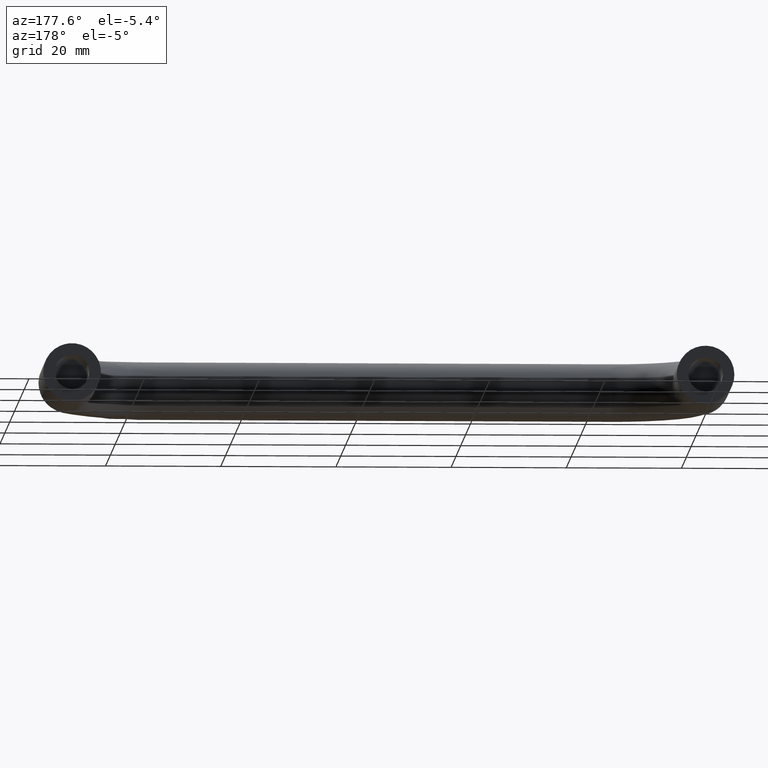
[diagram: clean part render]
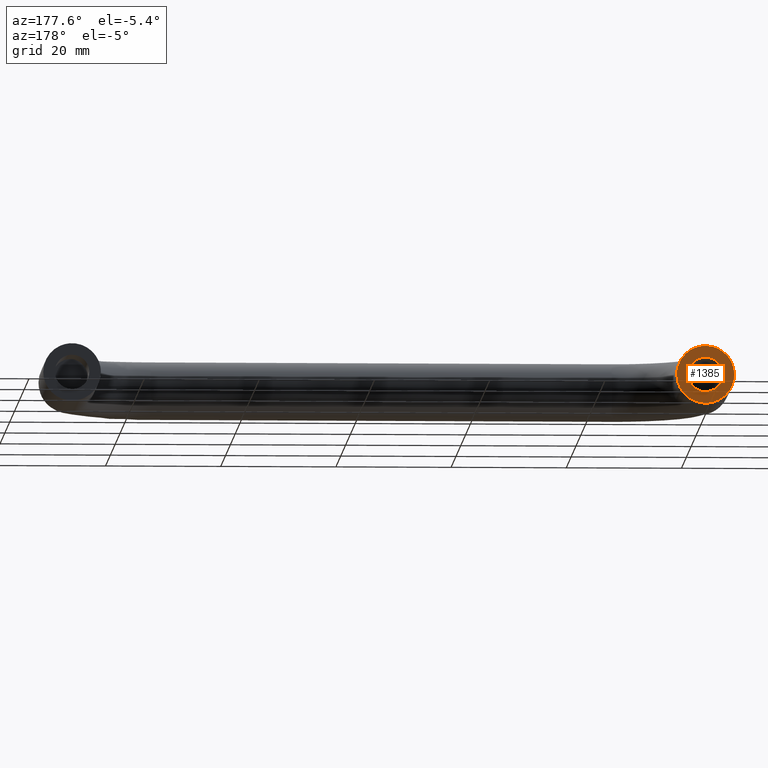
[diagram: same view with one face highlighted and labeled with its STEP entity id]
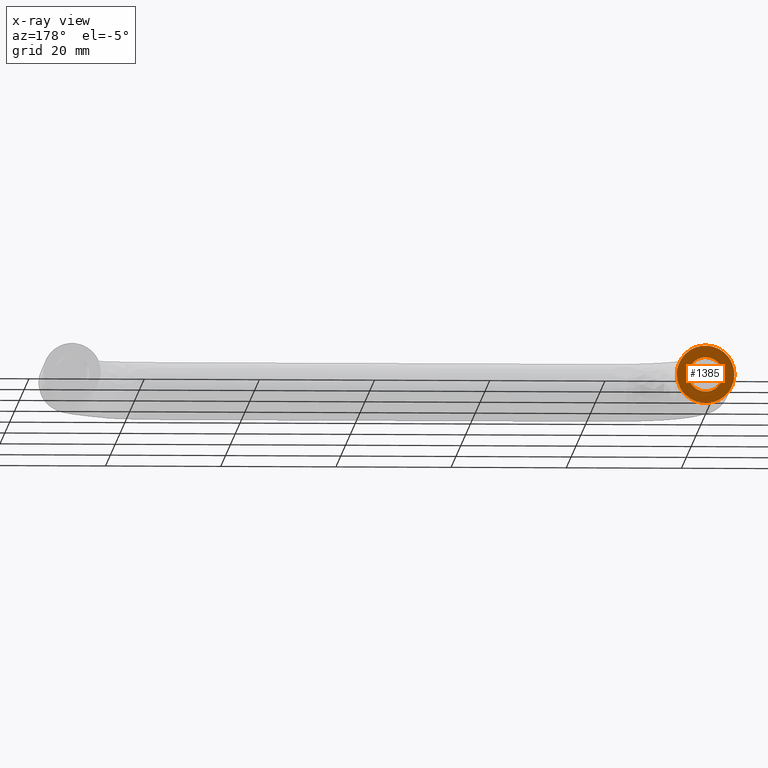
[diagram: x-ray of the same camera — body ghosted, the highlighted face saturated]
A machine part, auxiliary view. The second image highlights one B-rep face of the part: STEP entity #1385.
The next image is the same camera in x-ray: the body ghosted, the highlighted face saturated — about 0% of this face is hidden behind the body in this view.
In plain terms, the highlighted face is a freeform B-spline surface patch.
Its self-contained STEP definition (entity closure, byte-faithful):
#79=CARTESIAN_POINT('',(-2.990752001160772,-4.163336E-017,0.235377287674147));
#80=VERTEX_POINT('',#79);
#86=CARTESIAN_POINT('',(0.0,0.0,3.0));
#87=VERTEX_POINT('',#86);
#88=CARTESIAN_POINT('',(0.0,0.0,3.0));
#89=CARTESIAN_POINT('',(-2.773171474061971,0.0,3.000000000000000));
#90=CARTESIAN_POINT('',(-2.990752001160772,-4.163336E-017,0.235377287674147));
#98=(BOUNDED_CURVE()B_SPLINE_CURVE(2,(#88,#89,#90),.UNSPECIFIED.,.F.,.U.)B_SPLINE_CURVE_WITH_KNOTS((3,3),(0.0,0.236331300576525),.UNSPECIFIED.)CURVE()GEOMETRIC_REPRESENTATION_ITEM()RATIONAL_B_SPLINE_CURVE((1.0,0.723120658671088,0.969723356054443))REPRESENTATION_ITEM(''));
#99=EDGE_CURVE('',#87,#80,#98,.T.);
#101=CARTESIAN_POINT('',(2.990752001160772,-4.163336E-017,-0.235377287674146));
#102=VERTEX_POINT('',#101);
#103=CARTESIAN_POINT('',(2.990752001160772,-4.163336E-017,-0.235377287674146));
#104=CARTESIAN_POINT('',(3.0,0.0,-0.117870321515896));
#105=CARTESIAN_POINT('',(3.0,0.0,0.0));
#106=CARTESIAN_POINT('',(3.0,0.0,3.0));
#107=CARTESIAN_POINT('',(0.0,0.0,3.0));
#115=(BOUNDED_CURVE()B_SPLINE_CURVE(2,(#103,#104,#105,#106,#107),.UNSPECIFIED.,.F.,.U.)B_SPLINE_CURVE_WITH_KNOTS((3,2,3),(0.736331300576525,0.750000000000000,1.0),.UNSPECIFIED.)CURVE()GEOMETRIC_REPRESENTATION_ITEM()RATIONAL_B_SPLINE_CURVE((0.969723356054443,0.983986122515459,1.0,0.707106781186548,1.0))REPRESENTATION_ITEM(''));
#116=EDGE_CURVE('',#102,#87,#115,.T.);
#192=CARTESIAN_POINT('',(0.0,0.0,-3.0));
#193=VERTEX_POINT('',#192);
#194=CARTESIAN_POINT('',(0.0,0.0,-3.0));
#195=CARTESIAN_POINT('',(2.773171474061961,0.0,-3.0));
#196=CARTESIAN_POINT('',(2.990752001160772,-4.163336E-017,-0.235377287674146));
#204=(BOUNDED_CURVE()B_SPLINE_CURVE(2,(#194,#195,#196),.UNSPECIFIED.,.F.,.U.)B_SPLINE_CURVE_WITH_KNOTS((3,3),(0.500000000000000,0.736331300576524),.UNSPECIFIED.)CURVE()GEOMETRIC_REPRESENTATION_ITEM()RATIONAL_B_SPLINE_CURVE((1.0,0.723120658671089,0.969723356054442))REPRESENTATION_ITEM(''));
#205=EDGE_CURVE('',#193,#102,#204,.T.);
#207=CARTESIAN_POINT('',(-2.990752001160772,-4.163336E-017,0.235377287674147));
#208=CARTESIAN_POINT('',(-3.0,0.0,0.117870321515896));
#209=CARTESIAN_POINT('',(-3.0,0.0,0.0));
#210=CARTESIAN_POINT('',(-3.0,0.0,-3.0));
#211=CARTESIAN_POINT('',(0.0,0.0,-3.0));
#219=(BOUNDED_CURVE()B_SPLINE_CURVE(2,(#207,#208,#209,#210,#211),.UNSPECIFIED.,.F.,.U.)B_SPLINE_CURVE_WITH_KNOTS((3,2,3),(0.236331300576525,0.250000000000000,0.500000000000000),.UNSPECIFIED.)CURVE()GEOMETRIC_REPRESENTATION_ITEM()RATIONAL_B_SPLINE_CURVE((0.969723356054443,0.983986122515459,1.0,0.707106781186548,1.0))REPRESENTATION_ITEM(''));
#220=EDGE_CURVE('',#80,#193,#219,.T.);
#913=CARTESIAN_POINT('',(3.504546037652561,1.110223E-016,3.566252524706231));
#914=VERTEX_POINT('',#913);
#920=CARTESIAN_POINT('',(-5.0,0.0,0.0));
#921=VERTEX_POINT('',#920);
#922=CARTESIAN_POINT('',(-5.0,0.0,0.0));
#923=CARTESIAN_POINT('',(-5.000000000000001,0.0,5.000000000000001));
#924=CARTESIAN_POINT('',(0.0,0.0,5.0));
#925=CARTESIAN_POINT('',(2.045553542568838,0.0,5.0));
#926=CARTESIAN_POINT('',(3.504546037652562,1.110223E-016,3.566252524706231));
#934=(BOUNDED_CURVE()B_SPLINE_CURVE(2,(#922,#923,#924,#925,#926),.UNSPECIFIED.,.F.,.U.)B_SPLINE_CURVE_WITH_KNOTS((3,2,3),(0.500000000000000,0.750000000000000,0.873683218389311),.UNSPECIFIED.)CURVE()GEOMETRIC_REPRESENTATION_ITEM()RATIONAL_B_SPLINE_CURVE((1.0,0.707106781186548,1.0,0.855096096210990,0.853569641844379))REPRESENTATION_ITEM(''));
#935=EDGE_CURVE('',#921,#914,#934,.T.);
#937=CARTESIAN_POINT('',(3.566252573108815,1.110223E-016,-3.504545988397716));
#938=VERTEX_POINT('',#937);
#939=CARTESIAN_POINT('',(3.566252573108815,1.110223E-016,-3.504545988397716));
#940=CARTESIAN_POINT('',(2.096674557932352,0.0,-5.0));
#941=CARTESIAN_POINT('',(0.0,0.0,-5.0));
#942=CARTESIAN_POINT('',(-5.000000000000001,0.0,-5.000000000000001));
#943=CARTESIAN_POINT('',(-5.0,0.0,0.0));
#951=(BOUNDED_CURVE()B_SPLINE_CURVE(2,(#939,#940,#941,#942,#943),.UNSPECIFIED.,.F.,.U.)B_SPLINE_CURVE_WITH_KNOTS((3,2,3),(0.123683214221282,0.250000000000000,0.500000000000000),.UNSPECIFIED.)CURVE()GEOMETRIC_REPRESENTATION_ITEM()RATIONAL_B_SPLINE_CURVE((0.853569641947260,0.852010680092408,1.0,0.707106781186548,1.0))REPRESENTATION_ITEM(''));
#952=EDGE_CURVE('',#938,#921,#951,.T.);
#1054=CARTESIAN_POINT('',(5.0,0.0,0.0));
#1055=VERTEX_POINT('',#1054);
#1056=CARTESIAN_POINT('',(5.0,0.0,0.0));
#1057=CARTESIAN_POINT('',(4.999999999999999,0.0,-2.045553461953837));
#1058=CARTESIAN_POINT('',(3.566252573108815,1.110223E-016,-3.504545988397716));
#1066=(BOUNDED_CURVE()B_SPLINE_CURVE(2,(#1056,#1057,#1058),.UNSPECIFIED.,.F.,.U.)B_SPLINE_CURVE_WITH_KNOTS((3,3),(0.0,0.123683214221282),.UNSPECIFIED.)CURVE()GEOMETRIC_REPRESENTATION_ITEM()RATIONAL_B_SPLINE_CURVE((1.0,0.855096101094139,0.853569641947260))REPRESENTATION_ITEM(''));
#1067=EDGE_CURVE('',#1055,#938,#1066,.T.);
#1069=CARTESIAN_POINT('',(3.504546037652562,1.110223E-016,3.566252524706231));
#1070=CARTESIAN_POINT('',(5.000000000000001,0.0,2.096674476732413));
#1071=CARTESIAN_POINT('',(5.0,0.0,0.0));
#1079=(BOUNDED_CURVE()B_SPLINE_CURVE(2,(#1069,#1070,#1071),.UNSPECIFIED.,.F.,.U.)B_SPLINE_CURVE_WITH_KNOTS((3,3),(0.873683218389312,1.0),.UNSPECIFIED.)CURVE()GEOMETRIC_REPRESENTATION_ITEM()RATIONAL_B_SPLINE_CURVE((0.853569641844379,0.852010684975559,1.0))REPRESENTATION_ITEM(''));
#1080=EDGE_CURVE('',#914,#1055,#1079,.T.);
#1368=CARTESIAN_POINT('',(-5.499499980618060,0.0,-5.499407148863138));
#1369=CARTESIAN_POINT('',(5.499500248838961,0.0,-5.499407148863138));
#1370=CARTESIAN_POINT('',(-5.499499980618060,0.0,5.499407417084041));
#1371=CARTESIAN_POINT('',(5.499500248838961,0.0,5.499407417084041));
#1372=B_SPLINE_SURFACE_WITH_KNOTS('',1,1,((#1368,#1370),(#1369,#1371)),.UNSPECIFIED.,.F.,.F.,.U.,(2,2),(2,2),(0.0,10.999000229457019),(0.0,10.998814565947180),.UNSPECIFIED.);
#1373=ORIENTED_EDGE('',*,*,#1067,.T.);
#1374=ORIENTED_EDGE('',*,*,#952,.T.);
#1375=ORIENTED_EDGE('',*,*,#935,.T.);
#1376=ORIENTED_EDGE('',*,*,#1080,.T.);
#1377=EDGE_LOOP('',(#1373,#1374,#1375,#1376));
#1378=FACE_OUTER_BOUND('',#1377,.T.);
#1379=ORIENTED_EDGE('',*,*,#205,.T.);
#1380=ORIENTED_EDGE('',*,*,#116,.T.);
#1381=ORIENTED_EDGE('',*,*,#99,.T.);
#1382=ORIENTED_EDGE('',*,*,#220,.T.);
#1383=EDGE_LOOP('',(#1379,#1380,#1381,#1382));
#1384=FACE_BOUND('',#1383,.T.);
#1385=ADVANCED_FACE('',(#1378,#1384),#1372,.F.);